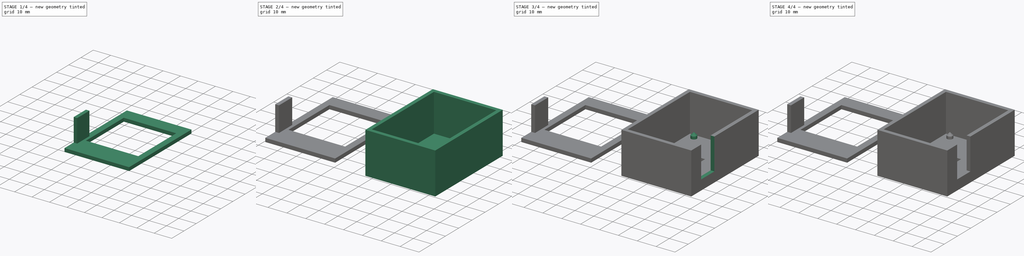
[diagram: build sequence overview — one tinted view per stage of 4, left to right]
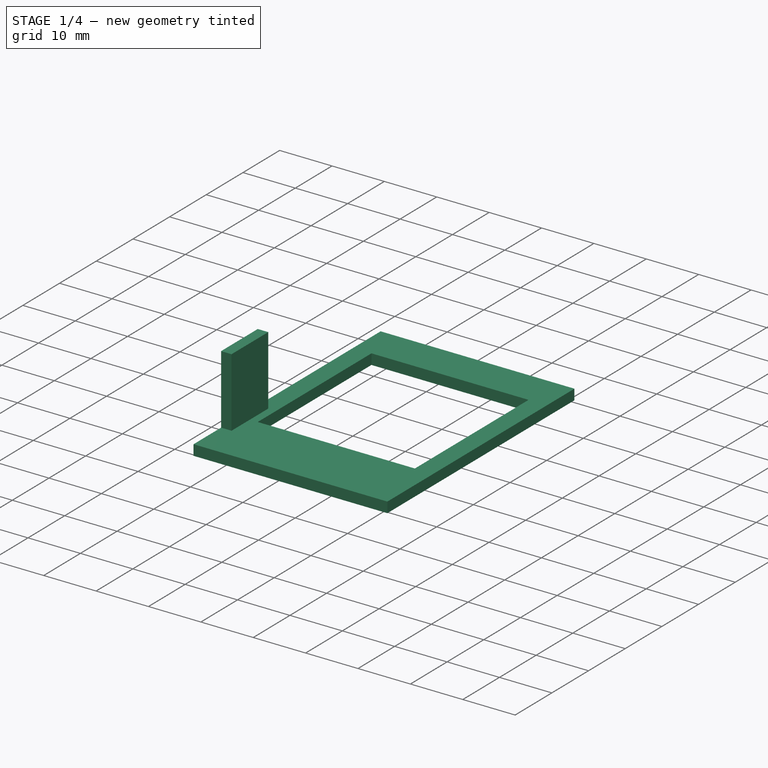
[diagram: stage 1 of 4 — iso view after this stage's code; geometry added in this stage tinted green]
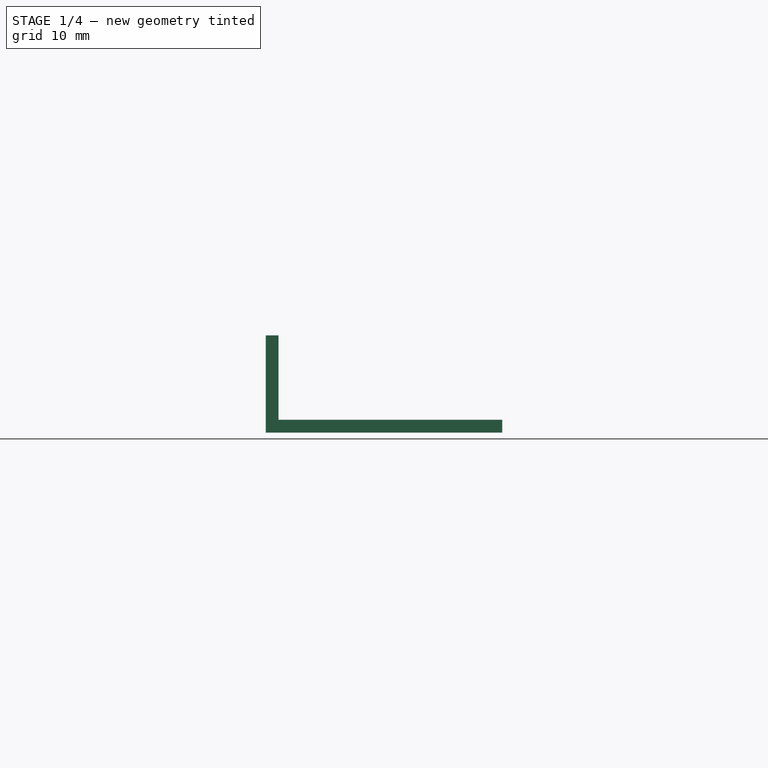
[diagram: stage 1 of 4 — front view after this stage's code; geometry added in this stage tinted green]
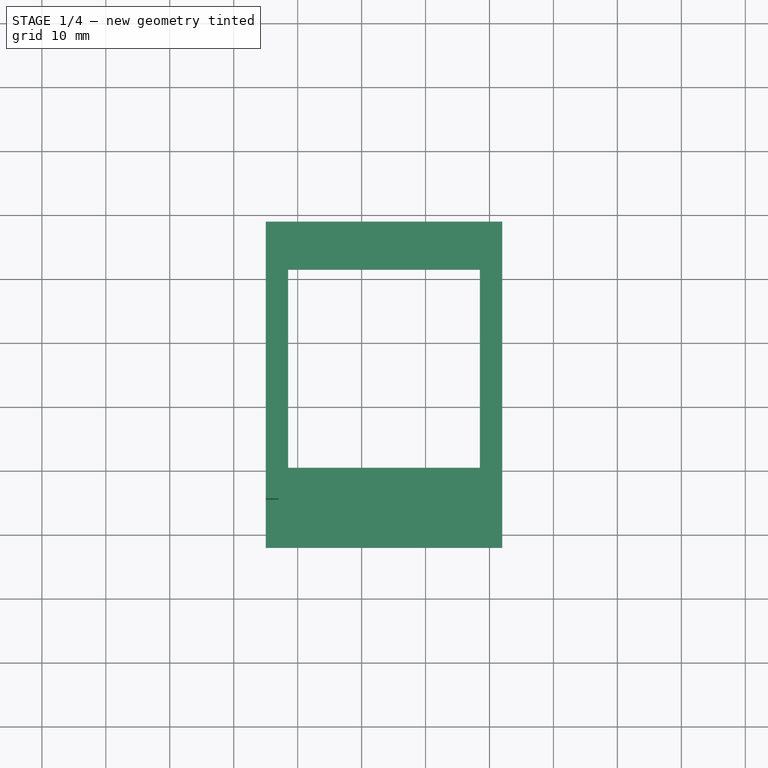
[diagram: stage 1 of 4 — top view after this stage's code; geometry added in this stage tinted green]
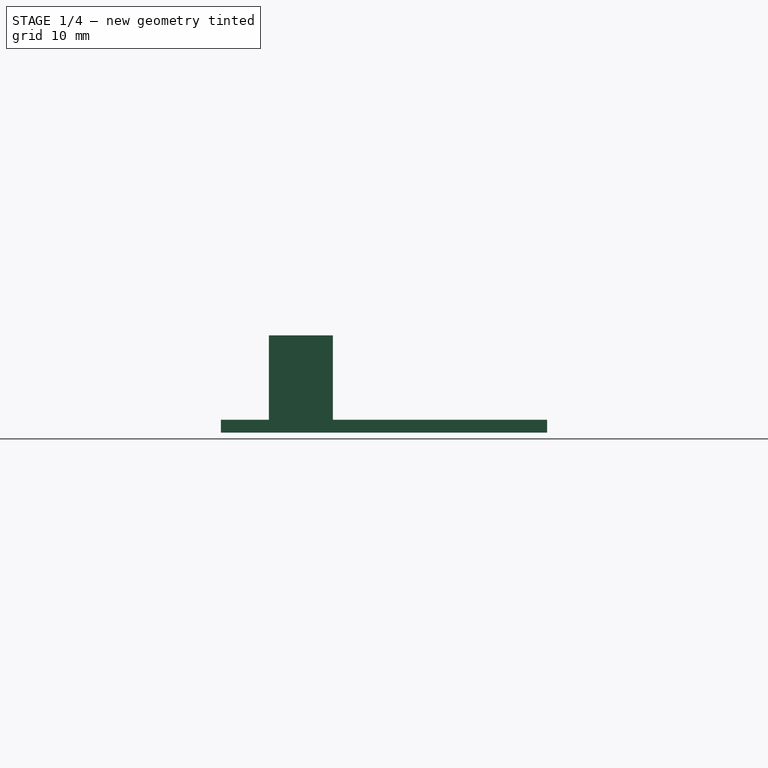
[diagram: stage 1 of 4 — right view after this stage's code; geometry added in this stage tinted green]
FCSTD DOCUMENT  (FreeCAD 0.20R29603 (Git))
Label: shell
License: All rights reserved
LicenseURL: http://en.wikipedia.org/wiki/All_rights_reserved
objects: Sketcher::SketchObject×12, PartDesign::Pad×4, PartDesign::Pocket×4, PartDesign::Line×4, PartDesign::Revolution×4, PartDesign::Plane×2, PartDesign::Body×2, App::Part×2
note: 44 computed .brp shape members not serialized (recipe doc carries the construction recipe); baked Part::Feature solids carry a one-line shape summary decoded from their .brp

FEATURE [Sketcher::SketchObject] Sketch004
  FullyConstrained = true
  MapMode = 5
  Support = -> [XY_Plane003]
  sketch-geometry (4):
    g0: LineSegment StartX=-8 StartY=59 StartZ=0 EndX=-8 EndY=8 EndZ=0
    g1: LineSegment StartX=-8 StartY=8 StartZ=0 EndX=-45 EndY=8 EndZ=0
    g2: LineSegment StartX=-45 StartY=8 StartZ=0 EndX=-45 EndY=59 EndZ=0
    g3: LineSegment StartX=-45 StartY=59 StartZ=0 EndX=-8 EndY=59 EndZ=0
  constraints (12):
    c: Vertical(g0)
    c: Coincident(g1,g0)
    c: Horizontal(g1)
    c: Coincident(g2,g1)
    c: Vertical(g2)
    c: Coincident(g3,g2)
    c: Coincident(g3,g0)
    c: Horizontal(g3)
    c: Distance(g2) = 51
    c: Distance(g0,g-1) = 8
    c: Distance(g0,g-2) = 8
    c: Distance(g1) = 37
FEATURE [PartDesign::Pad] Pad001
  Direction = (0,0,1)
  Length = 2
  Length2 = 10
  Profile = -> Sketch004
  ReferenceAxis = -> Sketch004 [N_Axis]
  Type = 0
FEATURE [Sketcher::SketchObject] Sketch005
  ExternalGeometry = -> [Pad001]
  FullyConstrained = true
  MapMode = 5
  Support = -> [XY_Plane003]
  sketch-geometry (4):
    g0: LineSegment StartX=-45 StartY=15.5 StartZ=0 EndX=-43 EndY=15.5 EndZ=0
    g1: LineSegment StartX=-43 StartY=15.5 StartZ=0 EndX=-43 EndY=25.5 EndZ=0
    g2: LineSegment StartX=-43 StartY=25.5 StartZ=0 EndX=-45 EndY=25.5 EndZ=0
    g3: LineSegment StartX=-45 StartY=25.5 StartZ=0 EndX=-45 EndY=15.5 EndZ=0
  constraints (12):
    c: PointOnObject(g0,g-3)
    c: Horizontal(g0)
    c: Coincident(g1,g0)
    c: Vertical(g1)
    c: Coincident(g2,g1)
    c: PointOnObject(g2,g-3)
    c: Coincident(g3,g2)
    c: Coincident(g3,g0)
    c: Horizontal(g2)
    c: Distance(g0) = 2
    c: Distance(g1) = 10
    c: Distance(g0,g-4) = 7.5
FEATURE [PartDesign::Pad] Pad002
  BaseFeature = -> Pad001
  Direction = (0,0,1)
  Length = 15.2
  Length2 = 10
  Profile = -> Sketch005
  ReferenceAxis = -> Sketch005 [N_Axis]
  Type = 0
FEATURE [PartDesign::Body] Body
  Group = -> [Sketch,Sketch001,Pad,Pocket,Sketch002,Pocket001,Sketch003,Pocket002,Sketch007,Pad003,DatumPlane,DatumLine,DatumLine001,Sketch008,Revolution,Sketch009,Revolution001,DatumLine002,DatumLine003,DatumPlane001,Sketch010,Revolution002,Sketch011,Revolution003]
  Origin = -> Origin001
  Tip = -> Revolution003
FEATURE [App::Part] Part  label="PartBody"
  Group = -> [Body]
  Origin = -> Origin
FEATURE [PartDesign::Pocket] Pocket003
  BaseFeature = -> Pad002
  Direction = (0,0,-1)
  Length = 2
  Length2 = 5
  Profile = -> Sketch006
  ReferenceAxis = -> Sketch006 [N_Axis]
  Reversed = true
  Type = 0
FEATURE [PartDesign::Body] Body001
  Group = -> [Sketch004,Pad001,Sketch005,Pad002,Sketch006,Pocket003]
  Origin = -> Origin003
  Tip = -> Pocket003
FEATURE [App::Part] Part001  label="PartCap"
  Group = -> [Body001]
  Origin = -> Origin002
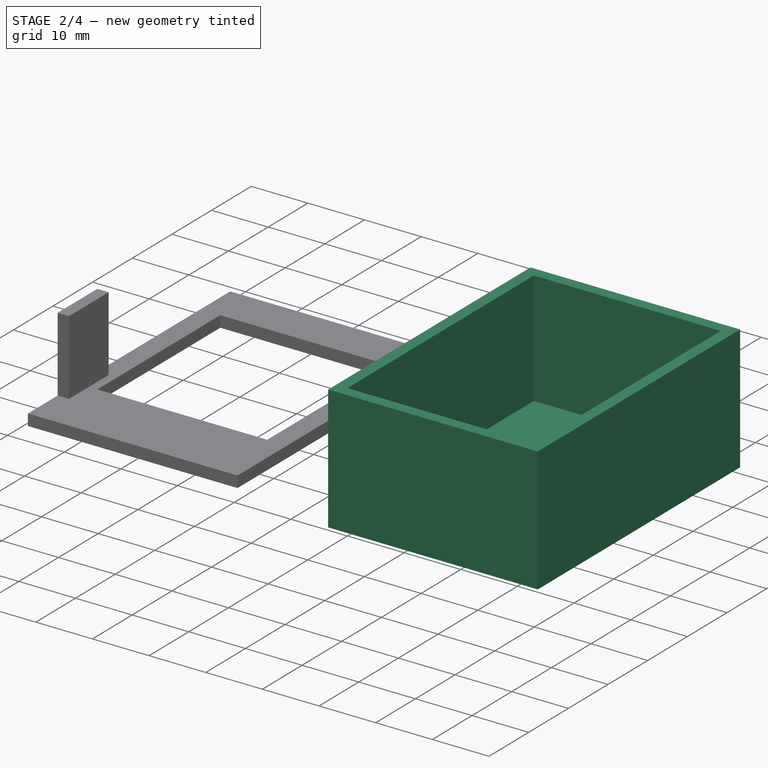
[diagram: stage 2 of 4 — iso view after this stage's code; geometry added in this stage tinted green]
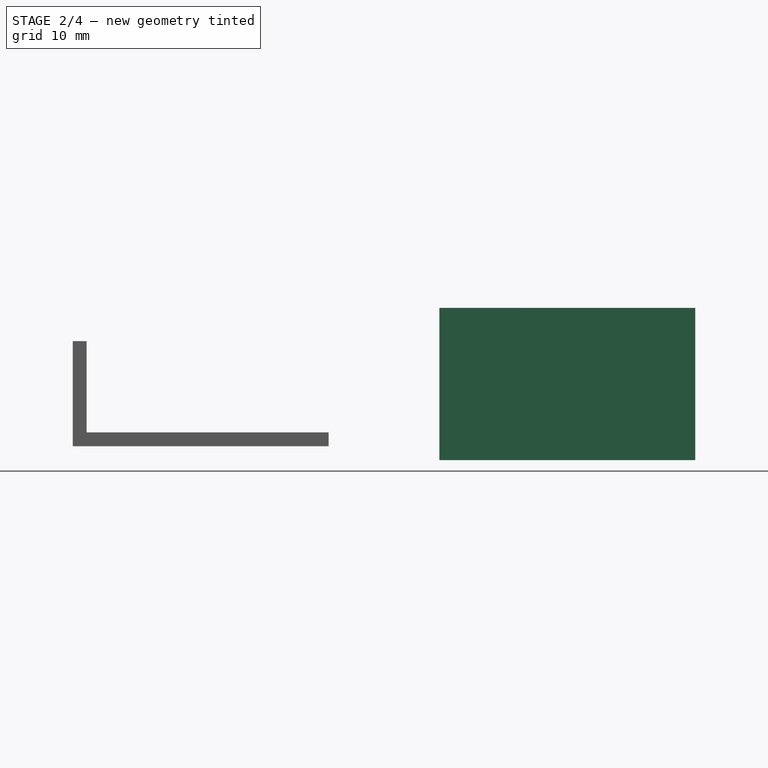
[diagram: stage 2 of 4 — front view after this stage's code; geometry added in this stage tinted green]
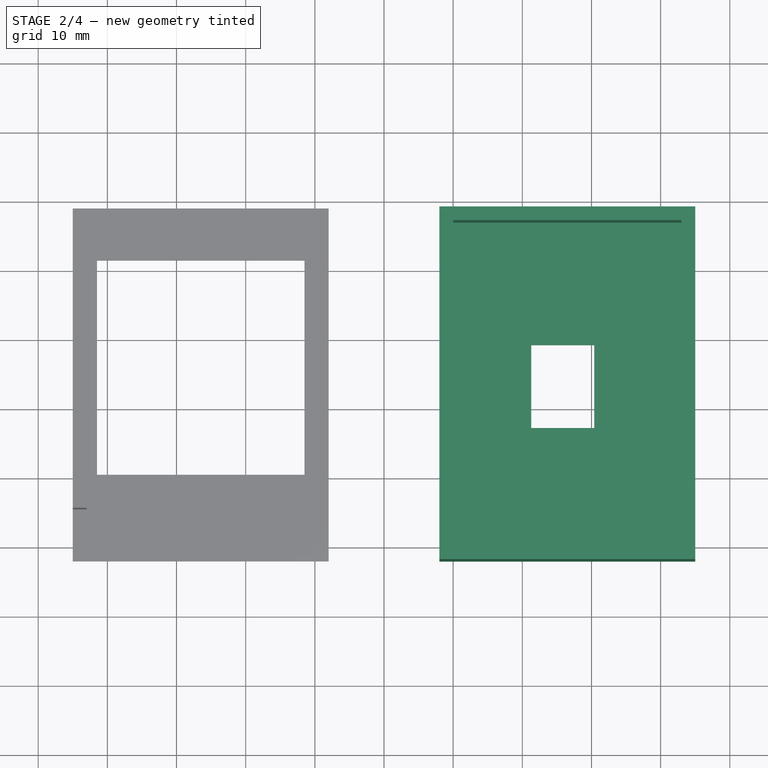
[diagram: stage 2 of 4 — top view after this stage's code; geometry added in this stage tinted green]
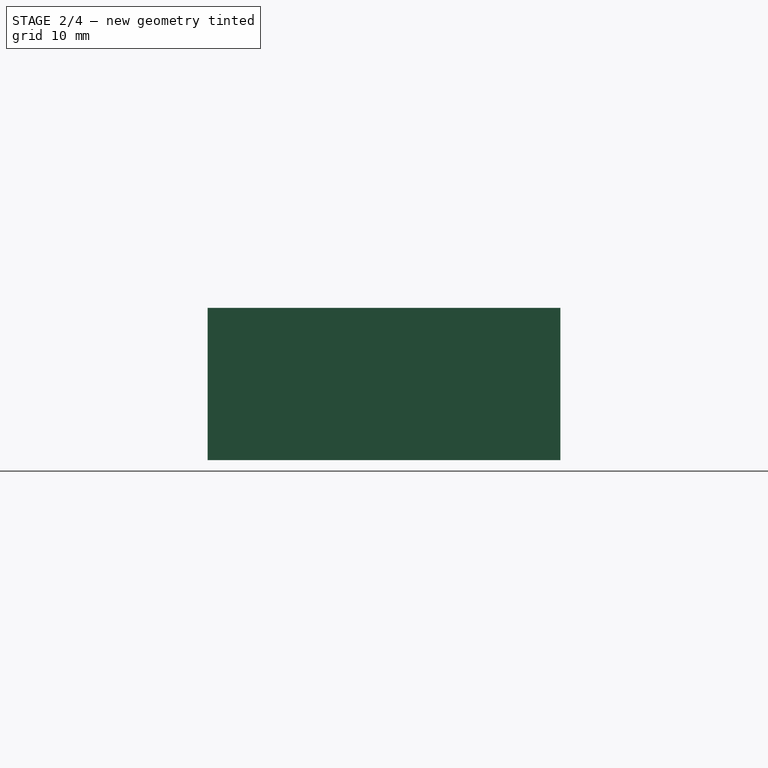
[diagram: stage 2 of 4 — right view after this stage's code; geometry added in this stage tinted green]
FEATURE [Sketcher::SketchObject] Sketch
  FullyConstrained = true
  MapMode = 5
  Support = -> [XY_Plane001]
  sketch-geometry (4):
    g0: LineSegment StartX=10 StartY=57 StartZ=0 EndX=10 EndY=10 EndZ=0
    g1: LineSegment StartX=10 StartY=10 StartZ=0 EndX=43 EndY=10 EndZ=0
    g2: LineSegment StartX=43 StartY=10 StartZ=0 EndX=43 EndY=57 EndZ=0
    g3: LineSegment StartX=43 StartY=57 StartZ=0 EndX=10 EndY=57 EndZ=0
  constraints (12):
    c: Vertical(g0)
    c: Coincident(g1,g0)
    c: Horizontal(g1)
    c: Coincident(g2,g1)
    c: Vertical(g2)
    c: Coincident(g3,g2)
    c: Coincident(g3,g0)
    c: Horizontal(g3)
    c: Distance(g1) = 33
    c: Distance(g0) = 47
    c: Distance(g0,g-1) = 10
    c: Distance(g0,g-2) = 10
FEATURE [Sketcher::SketchObject] Sketch001
  ExternalGeometry = -> [Sketch]
  FullyConstrained = true
  MapMode = 5
  Support = -> [XY_Plane001]
  sketch-geometry (4):
    g0: LineSegment StartX=8 StartY=59 StartZ=0 EndX=8 EndY=8 EndZ=0
    g1: LineSegment StartX=8 StartY=8 StartZ=0 EndX=45 EndY=8 EndZ=0
    g2: LineSegment StartX=45 StartY=8 StartZ=0 EndX=45 EndY=59 EndZ=0
    g3: LineSegment StartX=45 StartY=59 StartZ=0 EndX=8 EndY=59 EndZ=0
  constraints (12):
    c: Vertical(g0)
    c: Coincident(g1,g0)
    c: Horizontal(g1)
    c: Coincident(g2,g1)
    c: Vertical(g2)
    c: Coincident(g3,g2)
    c: Coincident(g3,g0)
    c: Horizontal(g3)
    c: Distance(g0,g-4) = 2
    c: Distance(g0,g-3) = 2
    c: Distance(g2,g-5) = 2
    c: Distance(g2,g-6) = 2
FEATURE [PartDesign::Pad] Pad
  Direction = (0,0,1)
  Length = 20
  Length2 = 2
  Profile = -> Sketch001
  ReferenceAxis = -> Sketch001 [N_Axis]
  Type = 4
FEATURE [PartDesign::Pocket] Pocket
  BaseFeature = -> Pad
  Direction = (0,0,-1)
  Length = 20
  Length2 = 0
  Profile = -> Sketch
  ReferenceAxis = -> Sketch [N_Axis]
  Reversed = true
  Type = 4
FEATURE [Sketcher::SketchObject] Sketch002
  ExternalGeometry = -> [Sketch]
  FullyConstrained = true
  MapMode = 5
  Support = -> [XY_Plane001]
  sketch-geometry (4):
    g0: LineSegment StartX=21.3 StartY=39.3 StartZ=0 EndX=21.3 EndY=27.3 EndZ=0
    g1: LineSegment StartX=21.3 StartY=27.3 StartZ=0 EndX=30.4 EndY=27.3 EndZ=0
    g2: LineSegment StartX=30.4 StartY=27.3 StartZ=0 EndX=30.4 EndY=39.3 EndZ=0
    g3: LineSegment StartX=30.4 StartY=39.3 StartZ=0 EndX=21.3 EndY=39.3 EndZ=0
  constraints (12):
    c: Vertical(g0)
    c: Coincident(g1,g0)
    c: Horizontal(g1)
    c: Coincident(g2,g1)
    c: Vertical(g2)
    c: Coincident(g3,g2)
    c: Coincident(g3,g0)
    c: Horizontal(g3)
    c: Distance(g2,g-3) = 12.6
    c: Distance(g0,g-4) = 11.3
    c: Distance(g1,g-6) = 17.3
    c: Distance(g0,g-5) = 17.7
FEATURE [PartDesign::Pocket] Pocket001
  BaseFeature = -> Pocket
  Direction = (0,0,-1)
  Length = 2
  Length2 = 5
  Profile = -> Sketch002
  ReferenceAxis = -> Sketch002 [N_Axis]
  Type = 0
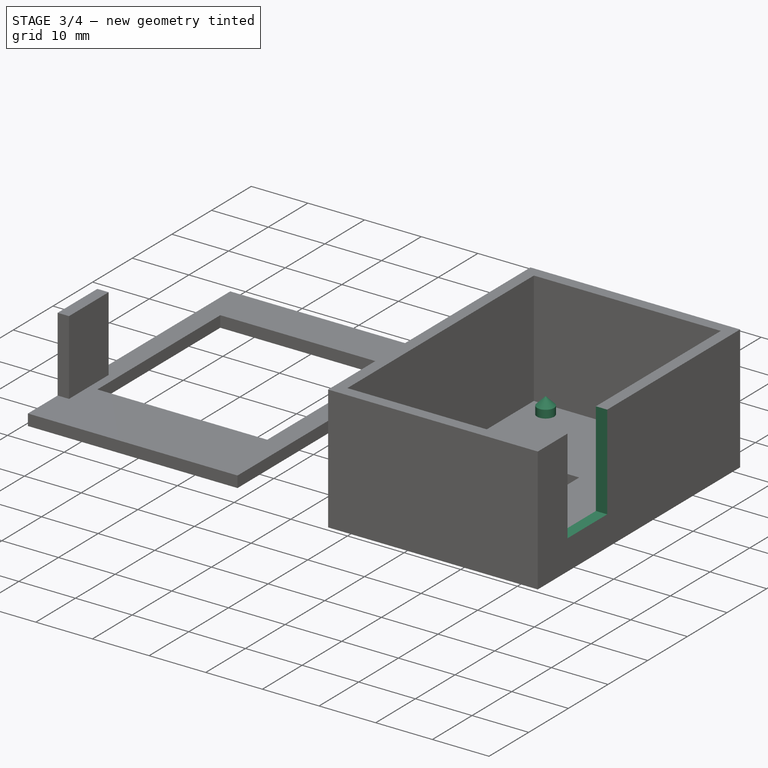
[diagram: stage 3 of 4 — iso view after this stage's code; geometry added in this stage tinted green]
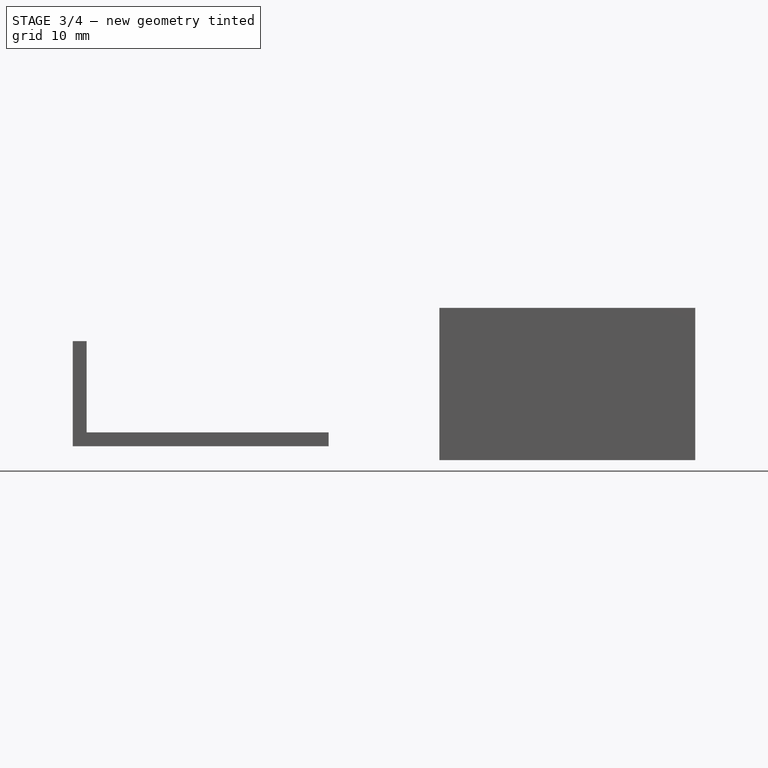
[diagram: stage 3 of 4 — front view after this stage's code; geometry added in this stage tinted green]
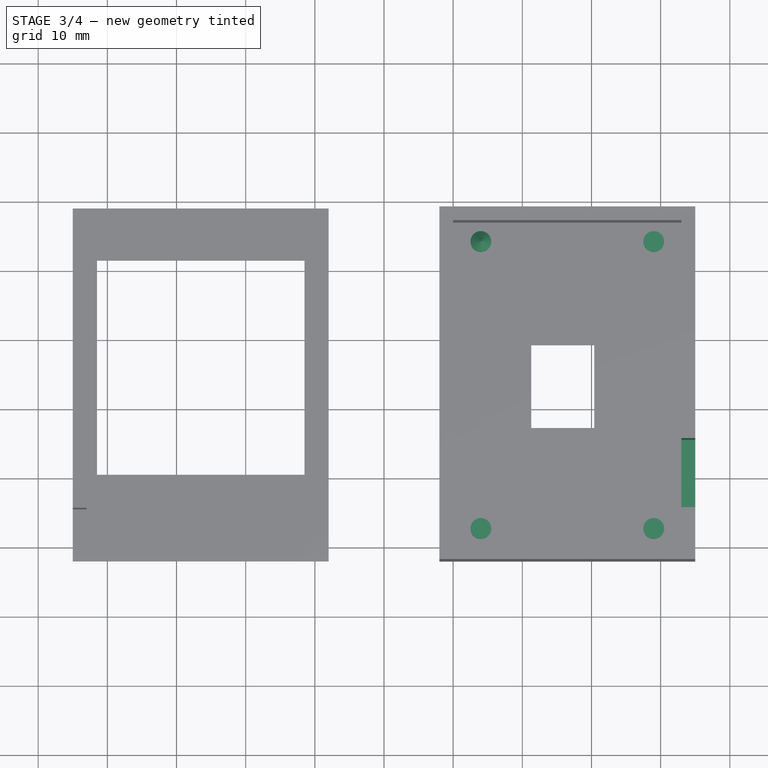
[diagram: stage 3 of 4 — top view after this stage's code; geometry added in this stage tinted green]
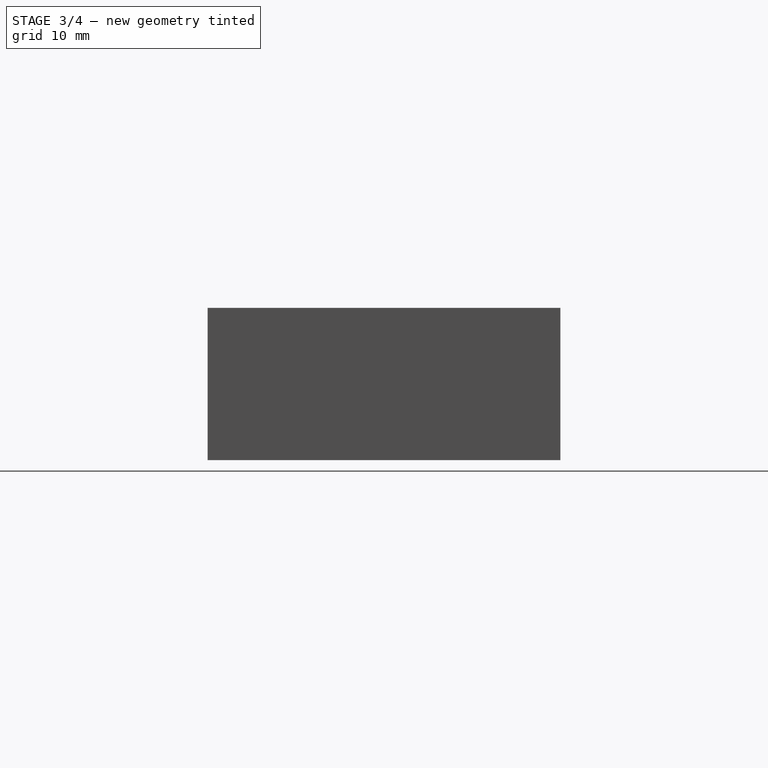
[diagram: stage 3 of 4 — right view after this stage's code; geometry added in this stage tinted green]
FEATURE [Sketcher::SketchObject] Sketch003
  ExternalGeometry = -> [Pad]
  FullyConstrained = true
  MapMode = 5
  Placement = pos=(45,0,0) rot=(0.57735,0.57735,0.57735;2.0944rad)
  Support = -> [Pad]
  sketch-geometry (4):
    g0: LineSegment StartX=15.5 StartY=20 StartZ=0 EndX=15.5 EndY=3.3 EndZ=0
    g1: LineSegment StartX=15.5 StartY=3.3 StartZ=0 EndX=25.5 EndY=3.3 EndZ=0
    g2: LineSegment StartX=25.5 StartY=3.3 StartZ=0 EndX=25.5 EndY=20 EndZ=0
    g3: LineSegment StartX=25.5 StartY=20 StartZ=0 EndX=15.5 EndY=20 EndZ=0
  constraints (12):
    c: PointOnObject(g0,g-4)
    c: Vertical(g0)
    c: Coincident(g1,g0)
    c: Horizontal(g1)
    c: Coincident(g2,g1)
    c: PointOnObject(g2,g-4)
    c: Vertical(g2)
    c: Coincident(g3,g2)
    c: Coincident(g3,g0)
    c: Distance(g0,g-3) = 7.5
    c: Distance(g1,g-1) = 3.3
    c: Distance(g1) = 10
FEATURE [PartDesign::Pocket] Pocket002
  BaseFeature = -> Pocket001
  Direction = (-1,0,0)
  Length = 2
  Length2 = 5
  Profile = -> Sketch003
  ReferenceAxis = -> Sketch003 [N_Axis]
  Type = 0
FEATURE [Sketcher::SketchObject] Sketch006
  ExternalGeometry = -> [Sketch004]
  FullyConstrained = true
  MapMode = 5
  Support = -> [XY_Plane003]
  sketch-geometry (4):
    g0: LineSegment StartX=-41.5 StartY=51.5 StartZ=0 EndX=-41.5 EndY=20.5 EndZ=0
    g1: LineSegment StartX=-41.5 StartY=20.5 StartZ=0 EndX=-11.5 EndY=20.5 EndZ=0
    g2: LineSegment StartX=-11.5 StartY=20.5 StartZ=0 EndX=-11.5 EndY=51.5 EndZ=0
    g3: LineSegment StartX=-11.5 StartY=51.5 StartZ=0 EndX=-41.5 EndY=51.5 EndZ=0
  constraints (12):
    c: Vertical(g0)
    c: Coincident(g1,g0)
    c: Horizontal(g1)
    c: Coincident(g2,g1)
    c: Vertical(g2)
    c: Coincident(g3,g2)
    c: Coincident(g3,g0)
    c: Horizontal(g3)
    c: Distance(g0) = 31
    c: Distance(g3) = 30
    c: Distance(g0,g-3) = 7.5
    c: Distance(g0,g-5) = 3.5
FEATURE [Sketcher::SketchObject] Sketch007
  ExternalGeometry = -> [Sketch]
  FullyConstrained = true
  MapMode = 5
  Support = -> [XY_Plane001]
  sketch-geometry (4):
    g0: Circle CenterX=14 CenterY=54.25 CenterZ=0 NormalX=0 NormalY=0 NormalZ=1 AngleXU=0 Radius=1.5
    g1: Circle CenterX=39 CenterY=54.25 CenterZ=0 NormalX=0 NormalY=0 NormalZ=1 AngleXU=0 Radius=1.5
    g2: Circle CenterX=39 CenterY=12.75 CenterZ=0 NormalX=0 NormalY=0 NormalZ=1 AngleXU=0 Radius=1.5
    g3: Circle CenterX=14 CenterY=12.75 CenterZ=0 NormalX=0 NormalY=0 NormalZ=1 AngleXU=0 Radius=1.5
  constraints (12):
    c: Diameter(g0) = 3
    c: Diameter(g1) = 3
    c: Diameter(g3) = 3
    c: Diameter(g2) = 3
    c: Distance(g0,g-3) = 4
    c: Distance(g1,g-4) = 4
    c: Distance(g3,g-3) = 4
    c: Distance(g2,g-4) = 4
    c: Distance(g0,g-6) = 2.75
    c: Distance(g1,g-6) = 2.75
    c: Distance(g3,g-5) = 2.75
    c: Distance(g2,g-5) = 2.75
FEATURE [PartDesign::Pad] Pad003
  BaseFeature = -> Pocket002
  Direction = (0,0,1)
  Length = 1.4
  Length2 = 10
  Profile = -> Sketch007
  ReferenceAxis = -> Sketch007 [N_Axis]
  Type = 0
FEATURE [PartDesign::Plane] DatumPlane
  AttachmentOffset = pos=(0,0,0) rot=(1,0,0;1.5708rad)
  Length = 81.8322
  MapMode = 45
  Placement = pos=(14,54.25,0.944186) rot=(1,0,0;1.5708rad)
  ResizeMode = 0
  Support = -> [Pad003]
  Width = 61.8322
FEATURE [PartDesign::Line] DatumLine
  AttacherType = Attacher::AttachEngineLine
  Length = 20
  MapMode = 42
  Placement = pos=(14,54.25,-1.6511e-12) rot=(0,0,1;0rad)
  ResizeMode = 0
  Support = -> [Pad003]
FEATURE [PartDesign::Line] DatumLine001
  AttacherType = Attacher::AttachEngineLine
  Length = 20
  MapMode = 42
  Placement = pos=(39,54.25,-2.6663e-12) rot=(0,0,1;0rad)
  ResizeMode = 0
  Support = -> [Pad003]
FEATURE [Sketcher::SketchObject] Sketch008
  ExternalGeometry = -> [Pad003]
  FullyConstrained = true
  MapMode = 5
  Placement = pos=(14,54.25,0.944186) rot=(1,0,0;1.5708rad)
  Support = -> [DatumPlane]
  sketch-geometry (3):
    g0: LineSegment StartX=0 StartY=1.95581 StartZ=0 EndX=1.5 EndY=0.455814 EndZ=0
    g1: LineSegment StartX=1.5 StartY=0.455814 StartZ=0 EndX=0 EndY=0.455814 EndZ=0
    g2: LineSegment StartX=0 StartY=0.455814 StartZ=0 EndX=0 EndY=1.95581 EndZ=0
  constraints (9):
    c: PointOnObject(g0,g-2)
    c: Coincident(g1,g0)
    c: PointOnObject(g1,g-2)
    c: Horizontal(g1)
    c: Coincident(g2,g1)
    c: Coincident(g2,g0)
    c: Distance(g1) = 1.5
    c: Distance(g2) = 1.5
    c: PointOnObject(g1,g-3)
FEATURE [PartDesign::Revolution] Revolution
  Angle = 360
  Axis = (0,-1.55e-14,1)
  Base = (14,54.25,0.944186)
  BaseFeature = -> Pad003
  Profile = -> Sketch008
  ReferenceAxis = -> Sketch008 [V_Axis]
  Reversed = true
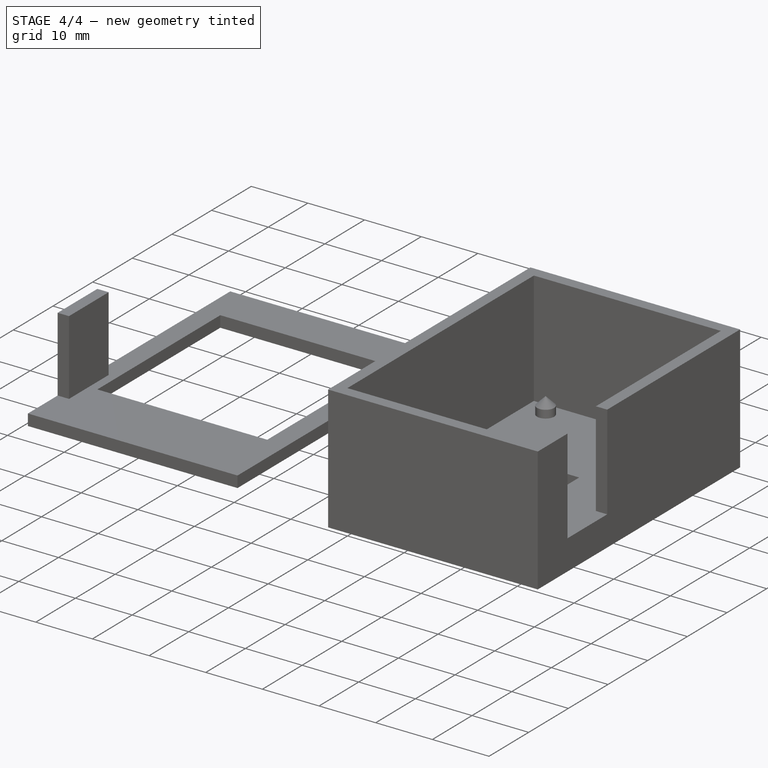
[diagram: stage 4 of 4 — iso view after this stage's code; geometry added in this stage tinted green]
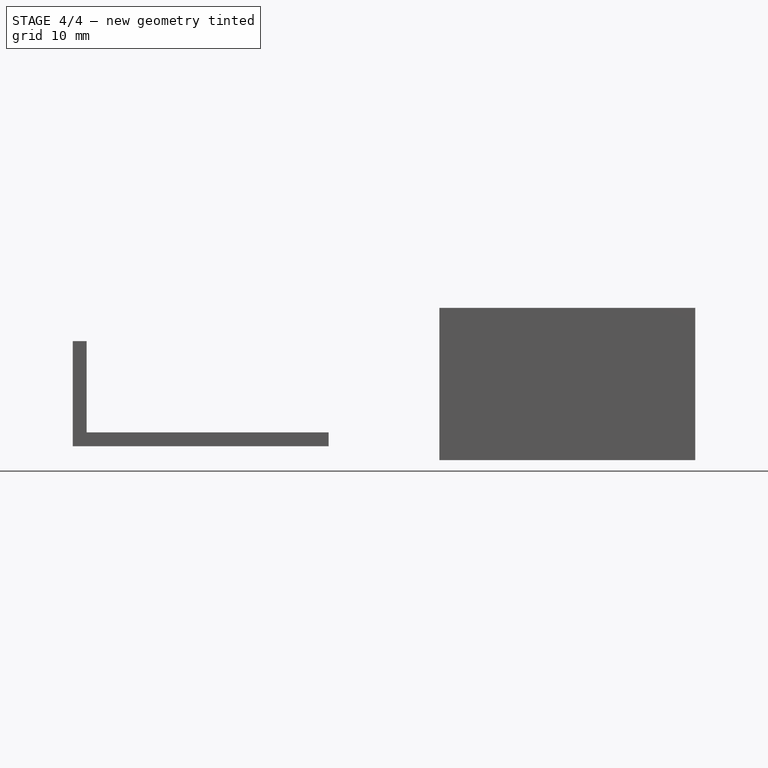
[diagram: stage 4 of 4 — front view after this stage's code; geometry added in this stage tinted green]
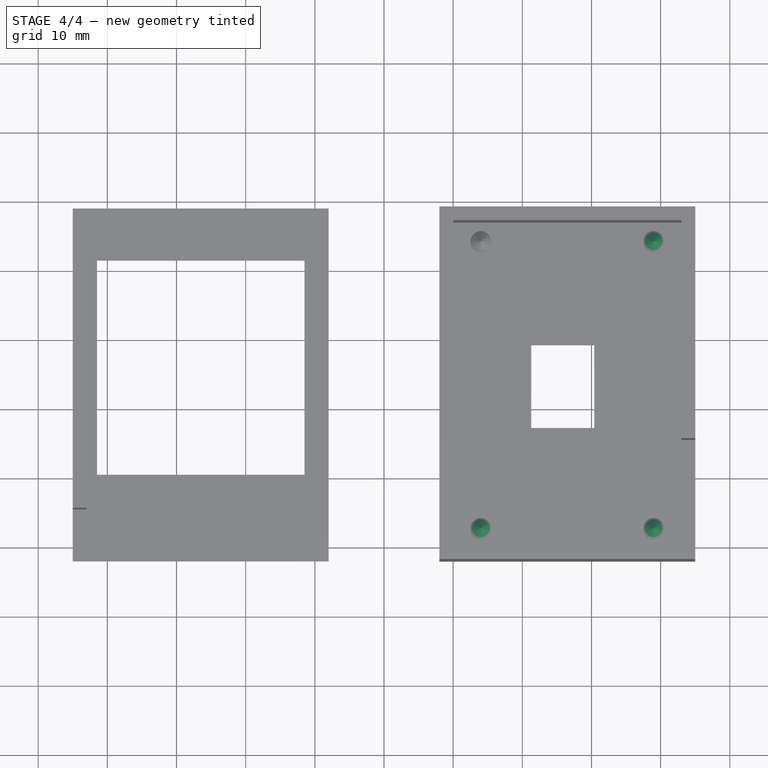
[diagram: stage 4 of 4 — top view after this stage's code; geometry added in this stage tinted green]
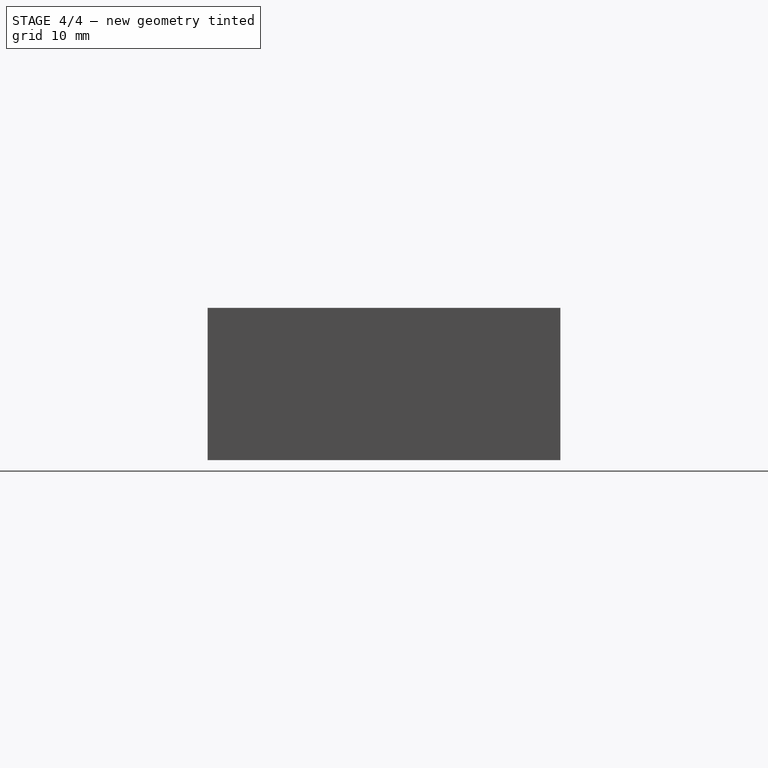
[diagram: stage 4 of 4 — right view after this stage's code; geometry added in this stage tinted green]
FEATURE [Sketcher::SketchObject] Sketch009
  ExternalGeometry = -> [DatumLine001,Revolution]
  FullyConstrained = true
  MapMode = 5
  Placement = pos=(14,54.25,0.944186) rot=(1,0,0;1.5708rad)
  Support = -> [DatumPlane]
  sketch-geometry (3):
    g0: LineSegment StartX=25 StartY=1.95581 StartZ=0 EndX=26.5 EndY=0.455814 EndZ=0
    g1: LineSegment StartX=26.5 StartY=0.455814 StartZ=0 EndX=25 EndY=0.455814 EndZ=0
    g2: LineSegment StartX=25 StartY=0.455814 StartZ=0 EndX=25 EndY=1.95581 EndZ=0
  constraints (9):
    c: PointOnObject(g0,g-3)
    c: Coincident(g1,g0)
    c: PointOnObject(g1,g-3)
    c: Horizontal(g1)
    c: Coincident(g2,g1)
    c: Coincident(g2,g0)
    c: Distance(g1) = 1.5
    c: Distance(g2) = 1.5
    c: PointOnObject(g1,g-4)
FEATURE [PartDesign::Revolution] Revolution001
  Angle = 360
  Axis = (2.86e-14,2.86e-14,1)
  Base = (39,54.25,-2.6663e-12)
  BaseFeature = -> Revolution
  Profile = -> Sketch009
  ReferenceAxis = -> DatumLine001
  Reversed = true
FEATURE [PartDesign::Line] DatumLine002
  AttacherType = Attacher::AttachEngineLine
  Length = 20
  MapMode = 42
  Placement = pos=(14,12.75,0) rot=(0,0,1;0rad)
  ResizeMode = 0
  Support = -> [Revolution001]
FEATURE [PartDesign::Line] DatumLine003
  AttacherType = Attacher::AttachEngineLine
  Length = 20
  MapMode = 42
  Placement = pos=(39,12.75,-1.1606e-12) rot=(0,0,1;0rad)
  ResizeMode = 0
  Support = -> [Revolution001]
FEATURE [PartDesign::Plane] DatumPlane001
  AttachmentOffset = pos=(0,0,0) rot=(1,0,0;1.5708rad)
  Length = 81.8322
  MapMode = 45
  Placement = pos=(14,12.75,0.7) rot=(1,0,0;1.5708rad)
  ResizeMode = 0
  Support = -> [Revolution001]
  Width = 61.8322
FEATURE [Sketcher::SketchObject] Sketch010
  ExternalGeometry = -> [Revolution001]
  FullyConstrained = true
  MapMode = 5
  Placement = pos=(14,12.75,0.7) rot=(1,0,0;1.5708rad)
  Support = -> [DatumPlane001]
  sketch-geometry (3):
    g0: LineSegment StartX=0 StartY=2.2 StartZ=0 EndX=1.5 EndY=0.7 EndZ=0
    g1: LineSegment StartX=1.5 StartY=0.7 StartZ=0 EndX=0 EndY=0.7 EndZ=0
    g2: LineSegment StartX=0 StartY=2.2 StartZ=0 EndX=0 EndY=0.7 EndZ=0
  constraints (9):
    c: PointOnObject(g0,g-2)
    c: Coincident(g1,g0)
    c: PointOnObject(g1,g-2)
    c: Horizontal(g1)
    c: Coincident(g2,g0)
    c: Coincident(g2,g1)
    c: Distance(g1) = 1.5
    c: Distance(g2) = 1.5
    c: PointOnObject(g1,g-3)
FEATURE [PartDesign::Revolution] Revolution002
  Angle = 360
  Axis = (0,2e-16,1)
  Base = (14,12.75,0.7)
  BaseFeature = -> Revolution001
  Profile = -> Sketch010
  ReferenceAxis = -> Sketch010 [V_Axis]
  Reversed = true
FEATURE [Sketcher::SketchObject] Sketch011
  ExternalGeometry = -> [DatumLine003,Revolution002]
  FullyConstrained = true
  MapMode = 5
  Placement = pos=(14,12.75,0.7) rot=(1,0,0;1.5708rad)
  Support = -> [DatumPlane001]
  sketch-geometry (3):
    g0: LineSegment StartX=25 StartY=2.2 StartZ=0 EndX=26.5 EndY=0.7 EndZ=0
    g1: LineSegment StartX=26.5 StartY=0.7 StartZ=0 EndX=25 EndY=0.7 EndZ=0
    g2: LineSegment StartX=25 StartY=0.7 StartZ=0 EndX=25 EndY=2.2 EndZ=0
  constraints (9):
    c: PointOnObject(g0,g-3)
    c: Coincident(g1,g0)
    c: PointOnObject(g1,g-3)
    c: Horizontal(g1)
    c: Coincident(g2,g1)
    c: Coincident(g2,g0)
    c: Distance(g2) = 1.5
    c: Distance(g1) = 1.5
    c: PointOnObject(g1,g-4)
FEATURE [PartDesign::Revolution] Revolution003
  Angle = 360
  Axis = (2.86e-14,3.6e-15,1)
  Base = (39,12.75,-1.1606e-12)
  BaseFeature = -> Revolution002
  Profile = -> Sketch011
  ReferenceAxis = -> DatumLine003
  Reversed = true
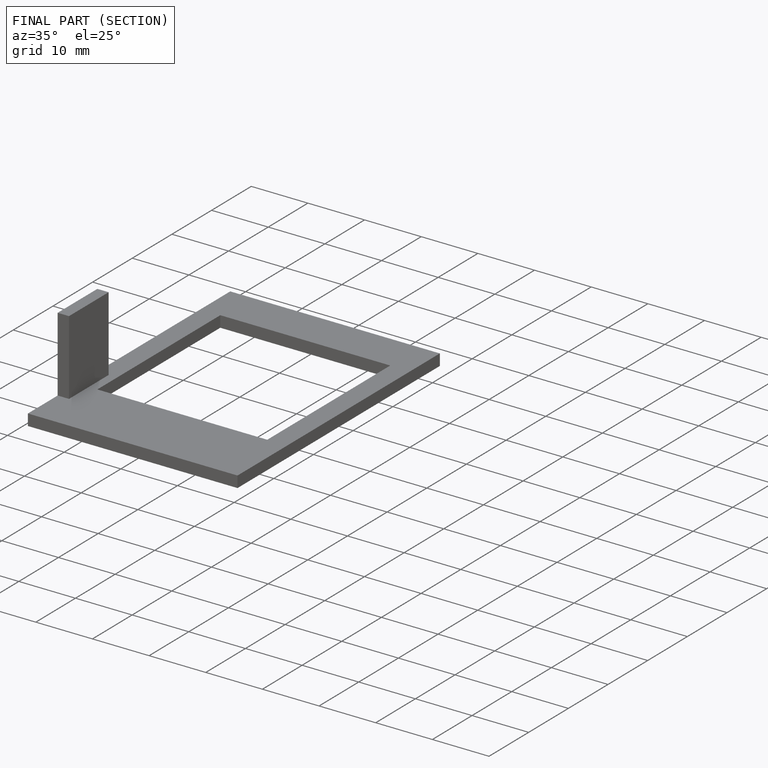
[diagram: finished part — half-section view (interior)]
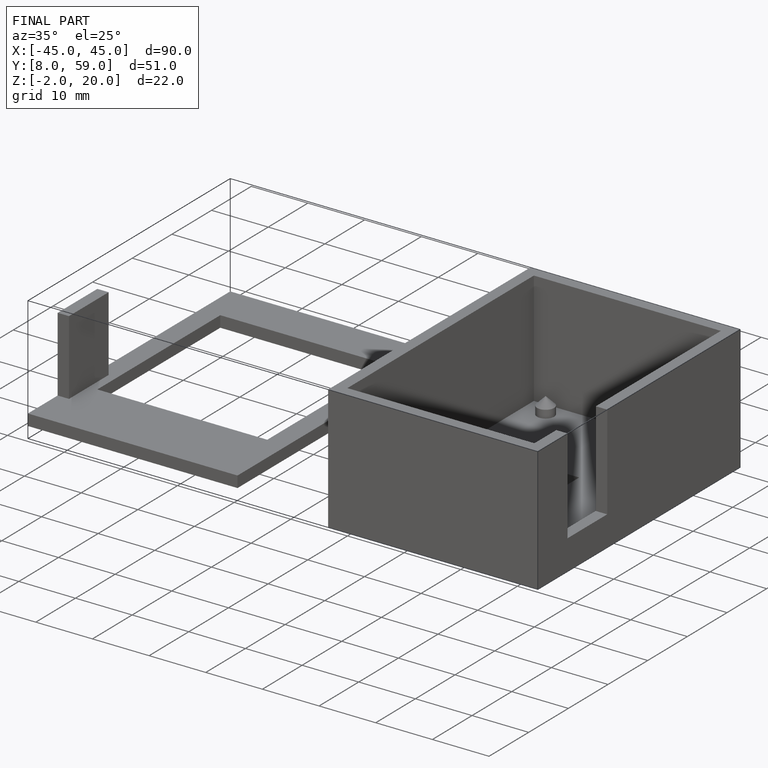
[diagram: finished part — iso view with bounding-box wireframe]
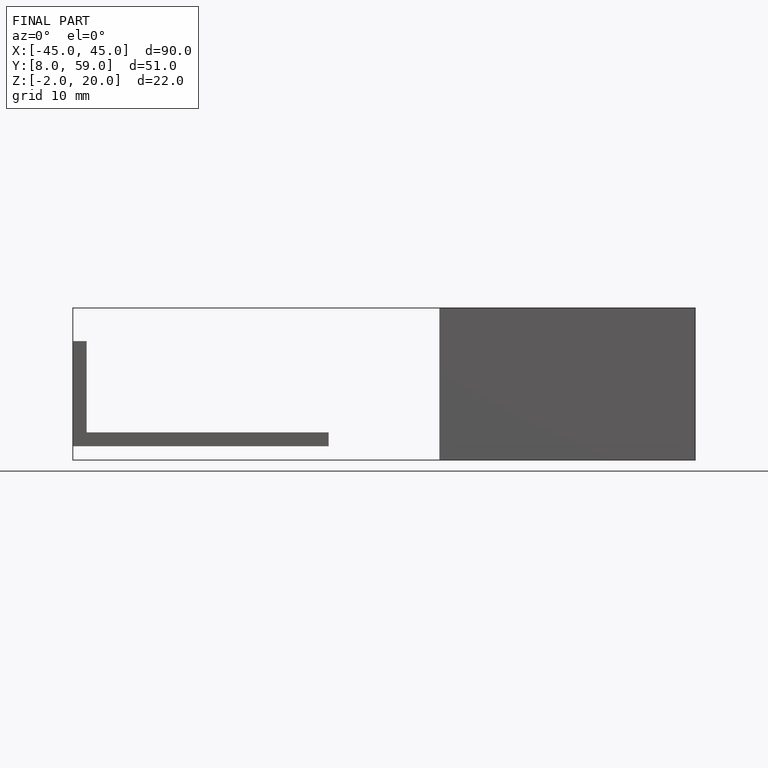
[diagram: finished part — front view with bounding-box wireframe]
